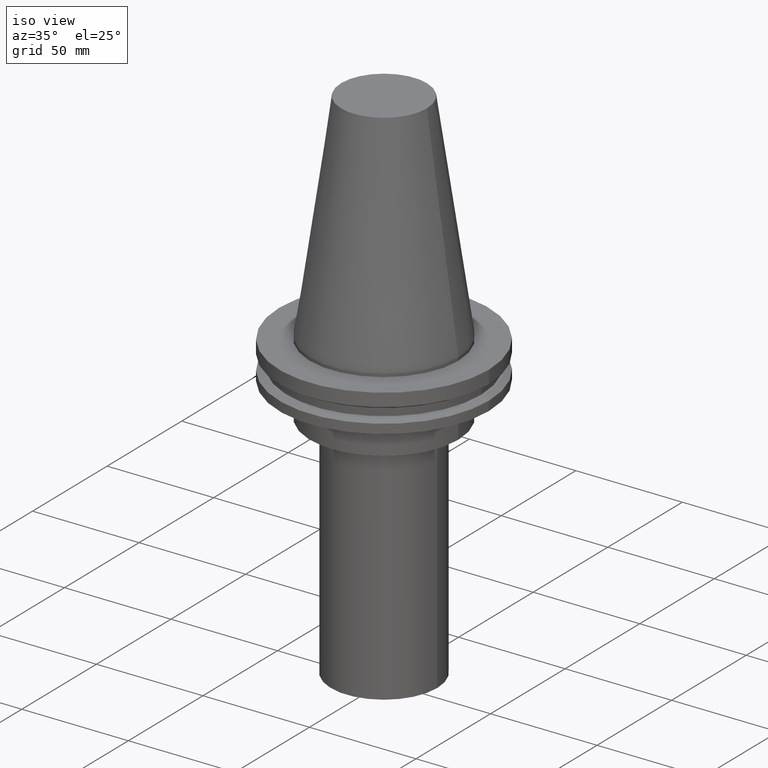
[diagram: clean part render]
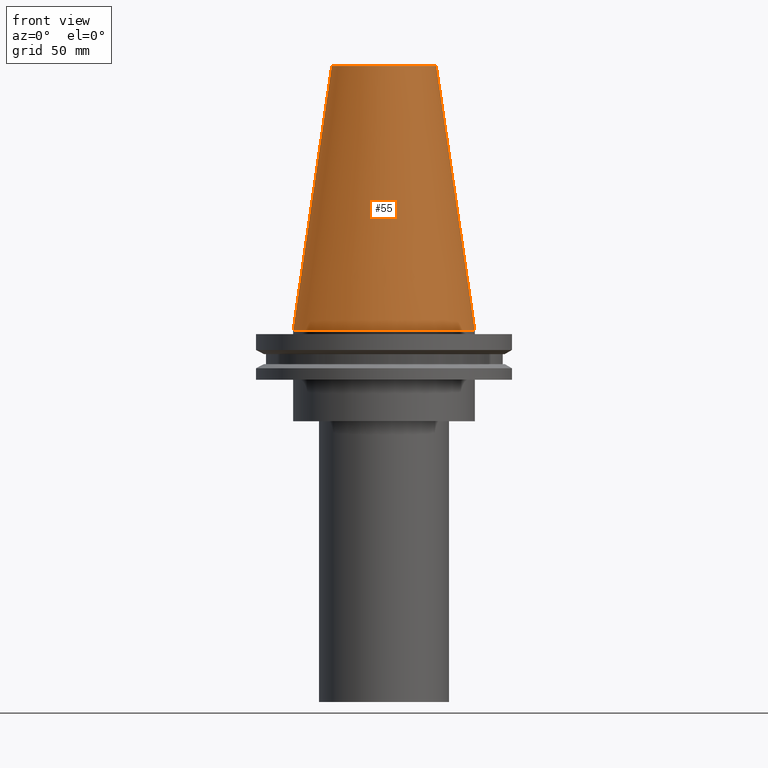
[diagram: tour spotlight — one face highlighted and labeled with its STEP entity id]
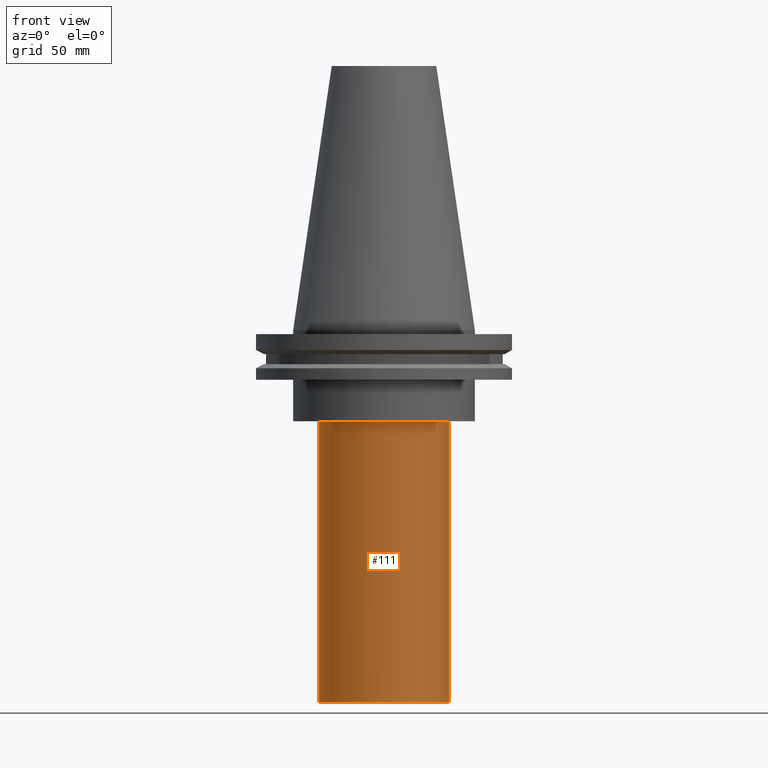
[diagram: tour spotlight — one face highlighted and labeled with its STEP entity id]
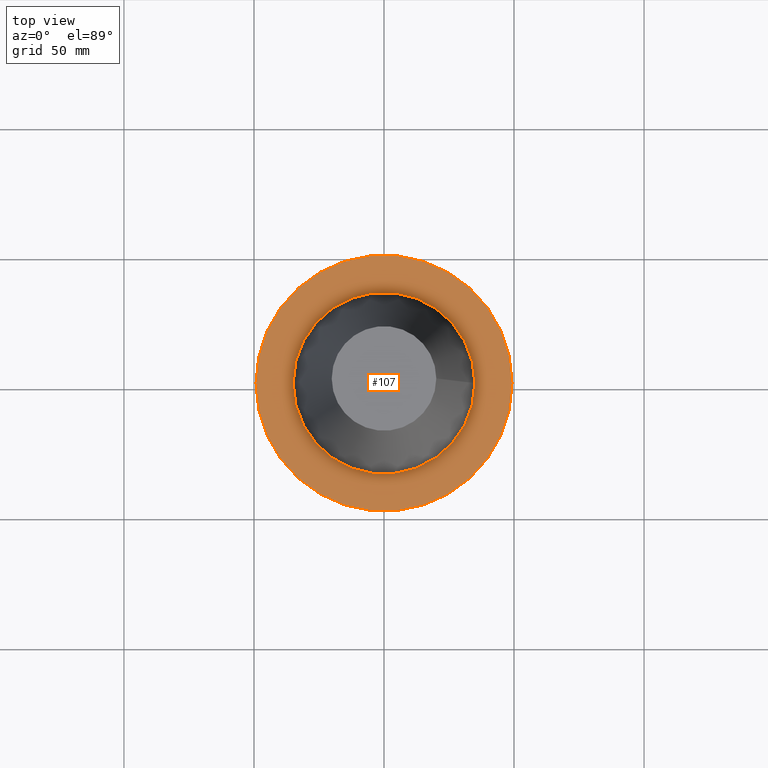
[diagram: tour spotlight — one face highlighted and labeled with its STEP entity id]
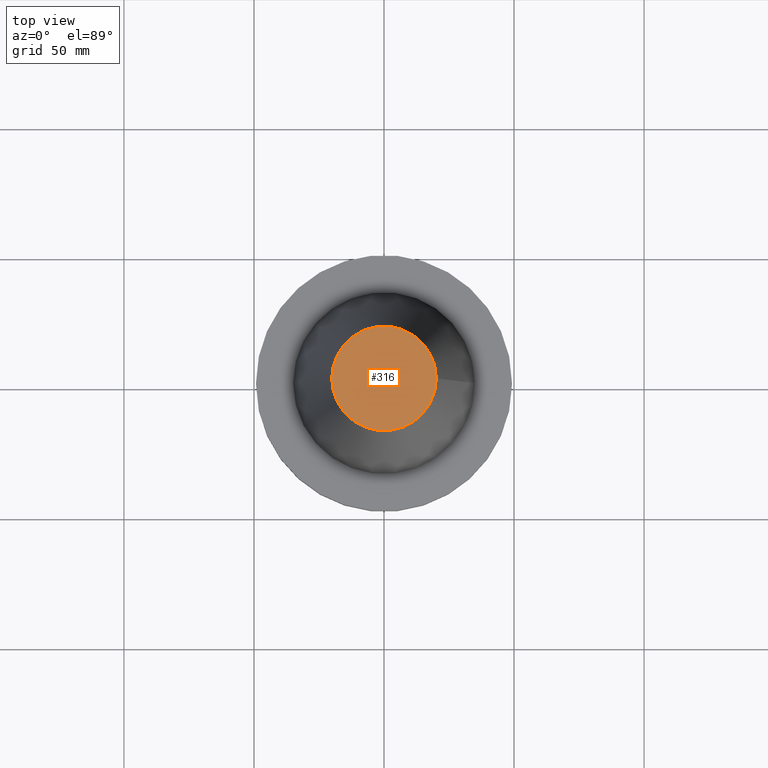
[diagram: tour spotlight — one face highlighted and labeled with its STEP entity id]
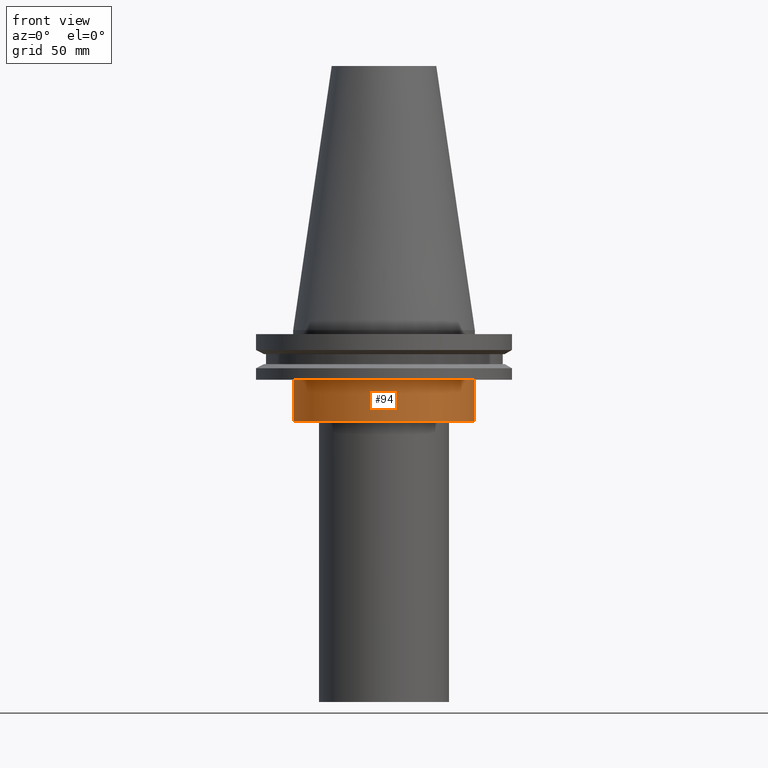
[diagram: tour spotlight — one face highlighted and labeled with its STEP entity id]
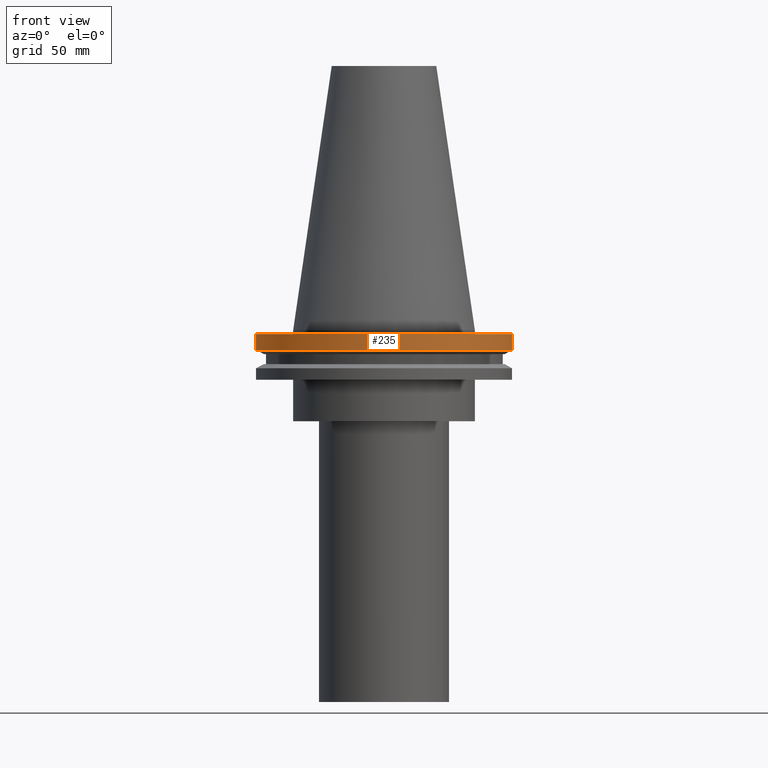
[diagram: tour spotlight — one face highlighted and labeled with its STEP entity id]
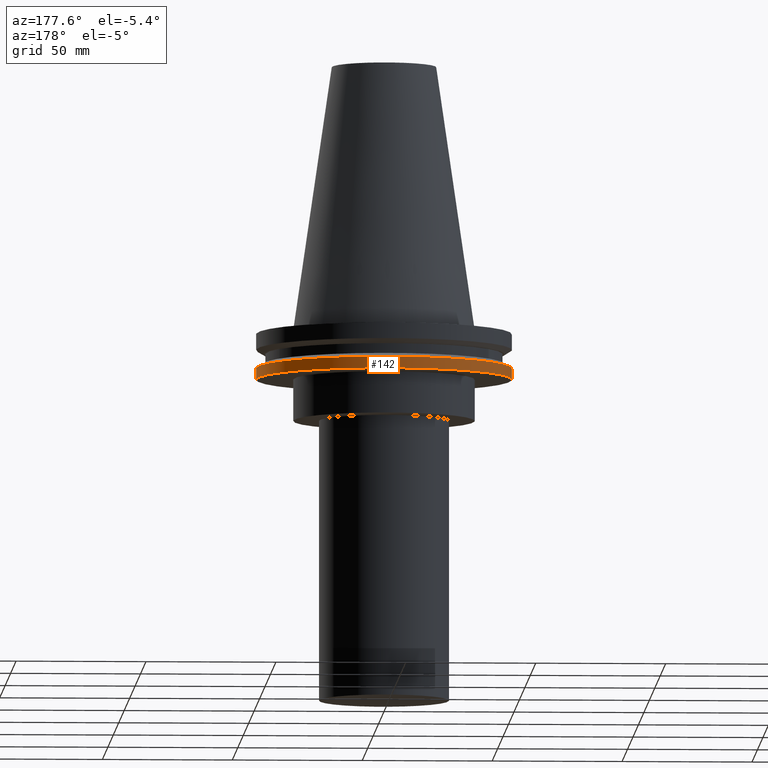
[diagram: tour spotlight — one face highlighted and labeled with its STEP entity id]
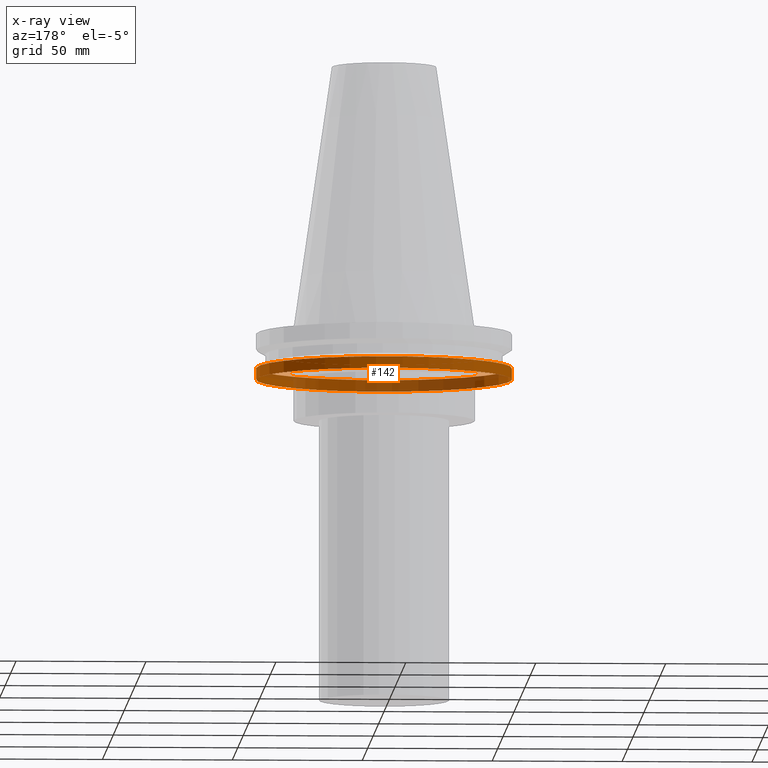
[diagram: x-ray of the same camera — body ghosted, this tour face saturated]
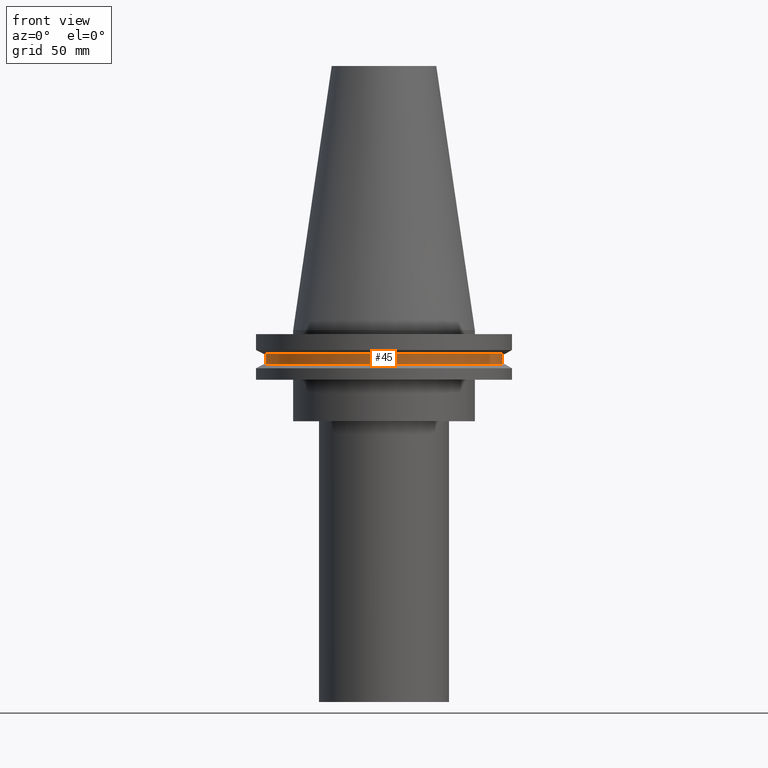
[diagram: tour spotlight — one face highlighted and labeled with its STEP entity id]
A machine part: a face-by-face anatomy tour. The part has 16 B-rep faces; the first image is the clean iso view, then the 8 largest visible faces are spotlighted one at a time (largest first), each with its STEP entity span.

Face 1 — front view, entity #55. In plain terms, the highlighted conical surface has half-angle 8.297 deg.
Definition (entity closure, byte-faithful):
#9 = CARTESIAN_POINT ( 'NONE',  ( 0.000000000000000000, 0.000000000000000000, 0.000000000000000000 ) ) ;
#55 = ADVANCED_FACE ( 'NONE', ( #373, #375 ), #280, .T. ) ;
#65 = CARTESIAN_POINT ( 'NONE',  ( 0.000000000000000000, 0.000000000000000000, 0.000000000000000000 ) ) ;
#81 = ORIENTED_EDGE ( 'NONE', *, *, #351, .F. ) ;
#89 = EDGE_LOOP ( 'NONE', ( #81 ) ) ;
#98 = DIRECTION ( 'NONE',  ( 0.000000000000000000, 0.000000000000000000, -1.000000000000000000 ) ) ;
#124 = DIRECTION ( 'NONE',  ( 1.000000000000000000, 0.000000000000000000, 0.000000000000000000 ) ) ;
#129 = CIRCLE ( 'NONE', #208, 20.10819343178871321 ) ;
#130 = DIRECTION ( 'NONE',  ( 1.000000000000000000, 0.000000000000000000, 0.000000000000000000 ) ) ;
#164 = DIRECTION ( 'NONE',  ( -0.000000000000000000, -0.000000000000000000, 1.000000000000000000 ) ) ;
#204 = CARTESIAN_POINT ( 'NONE',  ( 34.92499999999999005, 0.000000000000000000, 0.000000000000000000 ) ) ;
#206 = CARTESIAN_POINT ( 'NONE',  ( 20.10819343178871321, 0.000000000000000000, 101.5999999999999801 ) ) ;
#208 = AXIS2_PLACEMENT_3D ( 'NONE', #369, #310, #124 ) ;
#210 = VERTEX_POINT ( 'NONE', #204 ) ;
#213 = DIRECTION ( 'NONE',  ( -1.000000000000000000, 0.000000000000000000, 0.000000000000000000 ) ) ;
#231 = ORIENTED_EDGE ( 'NONE', *, *, #358, .T. ) ;
#261 = EDGE_LOOP ( 'NONE', ( #231 ) ) ;
#271 = VERTEX_POINT ( 'NONE', #206 ) ;
#280 = CONICAL_SURFACE ( 'NONE', #301, 34.92499999999999005, 0.1448138465474119452 ) ;
#291 = AXIS2_PLACEMENT_3D ( 'NONE', #65, #164, #130 ) ;
#301 = AXIS2_PLACEMENT_3D ( 'NONE', #9, #98, #213 ) ;
#308 = CIRCLE ( 'NONE', #291, 34.92499999999999005 ) ;
#310 = DIRECTION ( 'NONE',  ( -0.000000000000000000, -0.000000000000000000, 1.000000000000000000 ) ) ;
#351 = EDGE_CURVE ( 'NONE', #271, #271, #129, .T. ) ;
#358 = EDGE_CURVE ( 'NONE', #210, #210, #308, .T. ) ;
#369 = CARTESIAN_POINT ( 'NONE',  ( 0.000000000000000000, 0.000000000000000000, 101.5999999999999801 ) ) ;
#373 = FACE_BOUND ( 'NONE', #89, .T. ) ;
#375 = FACE_OUTER_BOUND ( 'NONE', #261, .T. ) ;

Face 2 — front view, entity #111. In plain terms, the highlighted cylindrical surface (bore or boss wall) has radius 25 mm, axis along (-0, -0, 1).
Definition (entity closure, byte-faithful):
#26 = FACE_OUTER_BOUND ( 'NONE', #181, .T. ) ;
#28 = DIRECTION ( 'NONE',  ( 1.000000000000000000, 0.000000000000000000, 0.000000000000000000 ) ) ;
#78 = CIRCLE ( 'NONE', #352, 25.00000000000000000 ) ;
#84 = FACE_OUTER_BOUND ( 'NONE', #205, .T. ) ;
#92 = VERTEX_POINT ( 'NONE', #185 ) ;
#111 = ADVANCED_FACE ( 'NONE', ( #26, #84 ), #288, .T. ) ;
#116 = DIRECTION ( 'NONE',  ( 1.000000000000000000, 0.000000000000000000, 0.000000000000000000 ) ) ;
#121 = AXIS2_PLACEMENT_3D ( 'NONE', #387, #228, #116 ) ;
#127 = DIRECTION ( 'NONE',  ( -0.000000000000000000, -0.000000000000000000, 1.000000000000000000 ) ) ;
#160 = CARTESIAN_POINT ( 'NONE',  ( 25.00000000000000000, 0.000000000000000000, -35.00000000000000000 ) ) ;
#163 = VERTEX_POINT ( 'NONE', #160 ) ;
#181 = EDGE_LOOP ( 'NONE', ( #322 ) ) ;
#185 = CARTESIAN_POINT ( 'NONE',  ( 25.00000000000000000, 0.000000000000000000, -143.0000000000000000 ) ) ;
#205 = EDGE_LOOP ( 'NONE', ( #330 ) ) ;
#217 = AXIS2_PLACEMENT_3D ( 'NONE', #329, #127, #338 ) ;
#222 = CIRCLE ( 'NONE', #217, 25.00000000000000000 ) ;
#228 = DIRECTION ( 'NONE',  ( -0.000000000000000000, -0.000000000000000000, 1.000000000000000000 ) ) ;
#277 = EDGE_CURVE ( 'NONE', #92, #92, #78, .T. ) ;
#288 = CYLINDRICAL_SURFACE ( 'NONE', #121, 25.00000000000000000 ) ;
#293 = DIRECTION ( 'NONE',  ( -0.000000000000000000, -0.000000000000000000, 1.000000000000000000 ) ) ;
#319 = CARTESIAN_POINT ( 'NONE',  ( 0.000000000000000000, 0.000000000000000000, -143.0000000000000000 ) ) ;
#322 = ORIENTED_EDGE ( 'NONE', *, *, #326, .F. ) ;
#326 = EDGE_CURVE ( 'NONE', #163, #163, #222, .T. ) ;
#329 = CARTESIAN_POINT ( 'NONE',  ( 0.000000000000000000, 0.000000000000000000, -35.00000000000000000 ) ) ;
#330 = ORIENTED_EDGE ( 'NONE', *, *, #277, .T. ) ;
#338 = DIRECTION ( 'NONE',  ( 1.000000000000000000, 0.000000000000000000, 0.000000000000000000 ) ) ;
#352 = AXIS2_PLACEMENT_3D ( 'NONE', #319, #293, #28 ) ;
#387 = CARTESIAN_POINT ( 'NONE',  ( 0.000000000000000000, 0.000000000000000000, 0.000000000000000000 ) ) ;

Face 3 — top view, entity #107. In plain terms, the highlighted planar face has unit normal (0, 0, -1).
Definition (entity closure, byte-faithful):
#37 = FACE_BOUND ( 'NONE', #382, .T. ) ;
#48 = DIRECTION ( 'NONE',  ( -1.000000000000000000, 0.000000000000000000, -0.000000000000000000 ) ) ;
#56 = FACE_OUTER_BOUND ( 'NONE', #178, .T. ) ;
#67 = CARTESIAN_POINT ( 'NONE',  ( 34.92499999999999005, 0.000000000000000000, -1.499999999999987566 ) ) ;
#97 = VERTEX_POINT ( 'NONE', #274 ) ;
#107 = ADVANCED_FACE ( 'NONE', ( #37, #56 ), #384, .F. ) ;
#117 = ORIENTED_EDGE ( 'NONE', *, *, #214, .F. ) ;
#139 = CIRCLE ( 'NONE', #314, 49.21499999999999631 ) ;
#154 = ORIENTED_EDGE ( 'NONE', *, *, #346, .T. ) ;
#178 = EDGE_LOOP ( 'NONE', ( #154 ) ) ;
#195 = AXIS2_PLACEMENT_3D ( 'NONE', #327, #225, #258 ) ;
#214 = EDGE_CURVE ( 'NONE', #336, #336, #380, .T. ) ;
#225 = DIRECTION ( 'NONE',  ( -0.000000000000000000, -0.000000000000000000, 1.000000000000000000 ) ) ;
#246 = CARTESIAN_POINT ( 'NONE',  ( 0.000000000000000000, 0.000000000000000000, -1.499999999999987566 ) ) ;
#258 = DIRECTION ( 'NONE',  ( 1.000000000000000000, 0.000000000000000000, 0.000000000000000000 ) ) ;
#274 = CARTESIAN_POINT ( 'NONE',  ( 49.21499999999999631, 0.000000000000000000, -1.499999999999987566 ) ) ;
#295 = CARTESIAN_POINT ( 'NONE',  ( 0.000000000000000000, 49.21499999999999631, -1.499999999999992895 ) ) ;
#297 = DIRECTION ( 'NONE',  ( 1.000000000000000000, 0.000000000000000000, 0.000000000000000000 ) ) ;
#314 = AXIS2_PLACEMENT_3D ( 'NONE', #246, #332, #297 ) ;
#327 = CARTESIAN_POINT ( 'NONE',  ( 0.000000000000000000, 0.000000000000000000, -1.499999999999987566 ) ) ;
#332 = DIRECTION ( 'NONE',  ( -0.000000000000000000, -0.000000000000000000, 1.000000000000000000 ) ) ;
#336 = VERTEX_POINT ( 'NONE', #67 ) ;
#346 = EDGE_CURVE ( 'NONE', #97, #97, #139, .T. ) ;
#348 = AXIS2_PLACEMENT_3D ( 'NONE', #295, #357, #48 ) ;
#357 = DIRECTION ( 'NONE',  ( 0.000000000000000000, 0.000000000000000000, -1.000000000000000000 ) ) ;
#380 = CIRCLE ( 'NONE', #195, 34.92499999999999005 ) ;
#382 = EDGE_LOOP ( 'NONE', ( #117 ) ) ;
#384 = PLANE ( 'NONE',  #348 ) ;

Face 4 — top view, entity #316. In plain terms, the highlighted planar face has unit normal (0, 0, -1).
Definition (entity closure, byte-faithful):
#2 = PLANE ( 'NONE',  #250 ) ;
#90 = CARTESIAN_POINT ( 'NONE',  ( 0.000000000000000000, 20.10819343178871321, 101.5999999999999943 ) ) ;
#124 = DIRECTION ( 'NONE',  ( 1.000000000000000000, 0.000000000000000000, 0.000000000000000000 ) ) ;
#129 = CIRCLE ( 'NONE', #208, 20.10819343178871321 ) ;
#188 = DIRECTION ( 'NONE',  ( 0.000000000000000000, 0.000000000000000000, -1.000000000000000000 ) ) ;
#206 = CARTESIAN_POINT ( 'NONE',  ( 20.10819343178871321, 0.000000000000000000, 101.5999999999999801 ) ) ;
#208 = AXIS2_PLACEMENT_3D ( 'NONE', #369, #310, #124 ) ;
#237 = EDGE_LOOP ( 'NONE', ( #263 ) ) ;
#240 = FACE_OUTER_BOUND ( 'NONE', #237, .T. ) ;
#250 = AXIS2_PLACEMENT_3D ( 'NONE', #90, #188, #269 ) ;
#263 = ORIENTED_EDGE ( 'NONE', *, *, #351, .T. ) ;
#269 = DIRECTION ( 'NONE',  ( -1.000000000000000000, 0.000000000000000000, -0.000000000000000000 ) ) ;
#271 = VERTEX_POINT ( 'NONE', #206 ) ;
#310 = DIRECTION ( 'NONE',  ( -0.000000000000000000, -0.000000000000000000, 1.000000000000000000 ) ) ;
#316 = ADVANCED_FACE ( 'NONE', ( #240 ), #2, .F. ) ;
#351 = EDGE_CURVE ( 'NONE', #271, #271, #129, .T. ) ;
#369 = CARTESIAN_POINT ( 'NONE',  ( 0.000000000000000000, 0.000000000000000000, 101.5999999999999801 ) ) ;

Face 5 — front view, entity #94. In plain terms, the highlighted cylindrical surface (bore or boss wall) has radius 34.925 mm, axis along (-0, -0, 1).
Definition (entity closure, byte-faithful):
#12 = CARTESIAN_POINT ( 'NONE',  ( 0.000000000000000000, 0.000000000000000000, 101.5999999999999943 ) ) ;
#14 = CIRCLE ( 'NONE', #333, 34.92499999999999716 ) ;
#27 = EDGE_LOOP ( 'NONE', ( #385 ) ) ;
#40 = DIRECTION ( 'NONE',  ( -0.000000000000000000, -0.000000000000000000, 1.000000000000000000 ) ) ;
#60 = CARTESIAN_POINT ( 'NONE',  ( 34.92499999999999716, 0.000000000000000000, -35.00000000000000000 ) ) ;
#62 = DIRECTION ( 'NONE',  ( 1.000000000000000000, 0.000000000000000000, 0.000000000000000000 ) ) ;
#63 = VERTEX_POINT ( 'NONE', #60 ) ;
#68 = FACE_OUTER_BOUND ( 'NONE', #203, .T. ) ;
#74 = AXIS2_PLACEMENT_3D ( 'NONE', #12, #133, #62 ) ;
#76 = EDGE_CURVE ( 'NONE', #63, #63, #335, .T. ) ;
#93 = FACE_OUTER_BOUND ( 'NONE', #27, .T. ) ;
#94 = ADVANCED_FACE ( 'NONE', ( #68, #93 ), #189, .T. ) ;
#95 = VERTEX_POINT ( 'NONE', #248 ) ;
#133 = DIRECTION ( 'NONE',  ( -0.000000000000000000, -0.000000000000000000, 1.000000000000000000 ) ) ;
#143 = DIRECTION ( 'NONE',  ( 1.000000000000000000, 0.000000000000000000, 0.000000000000000000 ) ) ;
#151 = CARTESIAN_POINT ( 'NONE',  ( 0.000000000000000000, 0.000000000000000000, -19.04999999999999716 ) ) ;
#152 = ORIENTED_EDGE ( 'NONE', *, *, #283, .F. ) ;
#166 = AXIS2_PLACEMENT_3D ( 'NONE', #307, #40, #278 ) ;
#189 = CYLINDRICAL_SURFACE ( 'NONE', #74, 34.92499999999999716 ) ;
#203 = EDGE_LOOP ( 'NONE', ( #152 ) ) ;
#248 = CARTESIAN_POINT ( 'NONE',  ( 34.92499999999999716, 0.000000000000000000, -19.04999999999999716 ) ) ;
#262 = DIRECTION ( 'NONE',  ( -0.000000000000000000, -0.000000000000000000, 1.000000000000000000 ) ) ;
#278 = DIRECTION ( 'NONE',  ( 1.000000000000000000, 0.000000000000000000, 0.000000000000000000 ) ) ;
#283 = EDGE_CURVE ( 'NONE', #95, #95, #14, .T. ) ;
#307 = CARTESIAN_POINT ( 'NONE',  ( 0.000000000000000000, 0.000000000000000000, -35.00000000000000000 ) ) ;
#333 = AXIS2_PLACEMENT_3D ( 'NONE', #151, #262, #143 ) ;
#335 = CIRCLE ( 'NONE', #166, 34.92499999999999716 ) ;
#385 = ORIENTED_EDGE ( 'NONE', *, *, #76, .T. ) ;

Face 6 — front view, entity #235. In plain terms, the highlighted cylindrical surface (bore or boss wall) has radius 49.215 mm, axis along (-0, -0, 1).
Definition (entity closure, byte-faithful):
#8 = CARTESIAN_POINT ( 'NONE',  ( 0.000000000000000000, 0.000000000000000000, -7.602389855251287187 ) ) ;
#52 = ORIENTED_EDGE ( 'NONE', *, *, #309, .T. ) ;
#83 = EDGE_LOOP ( 'NONE', ( #292 ) ) ;
#97 = VERTEX_POINT ( 'NONE', #274 ) ;
#112 = CYLINDRICAL_SURFACE ( 'NONE', #298, 49.21499999999999631 ) ;
#132 = CARTESIAN_POINT ( 'NONE',  ( 49.21500000000000341, 0.000000000000000000, -7.602389855251287187 ) ) ;
#139 = CIRCLE ( 'NONE', #314, 49.21499999999999631 ) ;
#148 = DIRECTION ( 'NONE',  ( 1.000000000000000000, 0.000000000000000000, 0.000000000000000000 ) ) ;
#158 = VERTEX_POINT ( 'NONE', #132 ) ;
#196 = DIRECTION ( 'NONE',  ( -0.000000000000000000, -0.000000000000000000, 1.000000000000000000 ) ) ;
#197 = EDGE_LOOP ( 'NONE', ( #52 ) ) ;
#198 = FACE_OUTER_BOUND ( 'NONE', #83, .T. ) ;
#224 = CIRCLE ( 'NONE', #383, 49.21500000000000341 ) ;
#235 = ADVANCED_FACE ( 'NONE', ( #198, #236 ), #112, .T. ) ;
#236 = FACE_OUTER_BOUND ( 'NONE', #197, .T. ) ;
#238 = DIRECTION ( 'NONE',  ( -0.000000000000000000, -0.000000000000000000, 1.000000000000000000 ) ) ;
#246 = CARTESIAN_POINT ( 'NONE',  ( 0.000000000000000000, 0.000000000000000000, -1.499999999999987566 ) ) ;
#274 = CARTESIAN_POINT ( 'NONE',  ( 49.21499999999999631, 0.000000000000000000, -1.499999999999987566 ) ) ;
#292 = ORIENTED_EDGE ( 'NONE', *, *, #346, .F. ) ;
#297 = DIRECTION ( 'NONE',  ( 1.000000000000000000, 0.000000000000000000, 0.000000000000000000 ) ) ;
#298 = AXIS2_PLACEMENT_3D ( 'NONE', #364, #196, #148 ) ;
#309 = EDGE_CURVE ( 'NONE', #158, #158, #224, .T. ) ;
#314 = AXIS2_PLACEMENT_3D ( 'NONE', #246, #332, #297 ) ;
#332 = DIRECTION ( 'NONE',  ( -0.000000000000000000, -0.000000000000000000, 1.000000000000000000 ) ) ;
#346 = EDGE_CURVE ( 'NONE', #97, #97, #139, .T. ) ;
#364 = CARTESIAN_POINT ( 'NONE',  ( 0.000000000000000000, 0.000000000000000000, 101.5999999999999943 ) ) ;
#372 = DIRECTION ( 'NONE',  ( 1.000000000000000000, 0.000000000000000000, 0.000000000000000000 ) ) ;
#383 = AXIS2_PLACEMENT_3D ( 'NONE', #8, #238, #372 ) ;

Face 7 — auxiliary view, entity #142. An x-ray twin of the same camera follows (body ghosted, this face saturated) — the face is partly hidden behind the body. In plain terms, the highlighted cylindrical surface (bore or boss wall) has radius 49.215 mm, axis along (-0, -0, 1).
Definition (entity closure, byte-faithful):
#4 = CIRCLE ( 'NONE', #86, 49.21499999999998920 ) ;
#7 = EDGE_CURVE ( 'NONE', #302, #302, #285, .T. ) ;
#10 = CARTESIAN_POINT ( 'NONE',  ( 49.21499999999998920, 0.000000000000000000, -14.65761014474876944 ) ) ;
#36 = VERTEX_POINT ( 'NONE', #366 ) ;
#86 = AXIS2_PLACEMENT_3D ( 'NONE', #254, #232, #173 ) ;
#113 = EDGE_LOOP ( 'NONE', ( #365 ) ) ;
#136 = EDGE_CURVE ( 'NONE', #36, #36, #4, .T. ) ;
#138 = AXIS2_PLACEMENT_3D ( 'NONE', #389, #355, #264 ) ;
#142 = ADVANCED_FACE ( 'NONE', ( #230, #201 ), #153, .T. ) ;
#153 = CYLINDRICAL_SURFACE ( 'NONE', #138, 49.21499999999998920 ) ;
#173 = DIRECTION ( 'NONE',  ( 1.000000000000000000, 0.000000000000000000, 0.000000000000000000 ) ) ;
#186 = DIRECTION ( 'NONE',  ( 1.000000000000000000, 0.000000000000000000, 0.000000000000000000 ) ) ;
#200 = ORIENTED_EDGE ( 'NONE', *, *, #7, .F. ) ;
#201 = FACE_OUTER_BOUND ( 'NONE', #113, .T. ) ;
#202 = CARTESIAN_POINT ( 'NONE',  ( 0.000000000000000000, 0.000000000000000000, -14.65761014474876944 ) ) ;
#230 = FACE_OUTER_BOUND ( 'NONE', #390, .T. ) ;
#232 = DIRECTION ( 'NONE',  ( -0.000000000000000000, -0.000000000000000000, 1.000000000000000000 ) ) ;
#254 = CARTESIAN_POINT ( 'NONE',  ( 0.000000000000000000, 0.000000000000000000, -19.04999999999999716 ) ) ;
#264 = DIRECTION ( 'NONE',  ( 1.000000000000000000, 0.000000000000000000, 0.000000000000000000 ) ) ;
#270 = DIRECTION ( 'NONE',  ( -0.000000000000000000, -0.000000000000000000, 1.000000000000000000 ) ) ;
#285 = CIRCLE ( 'NONE', #315, 49.21499999999998920 ) ;
#302 = VERTEX_POINT ( 'NONE', #10 ) ;
#315 = AXIS2_PLACEMENT_3D ( 'NONE', #202, #270, #186 ) ;
#355 = DIRECTION ( 'NONE',  ( -0.000000000000000000, -0.000000000000000000, 1.000000000000000000 ) ) ;
#365 = ORIENTED_EDGE ( 'NONE', *, *, #136, .T. ) ;
#366 = CARTESIAN_POINT ( 'NONE',  ( 49.21499999999998920, 0.000000000000000000, -19.04999999999999716 ) ) ;
#389 = CARTESIAN_POINT ( 'NONE',  ( 0.000000000000000000, 0.000000000000000000, 101.5999999999999943 ) ) ;
#390 = EDGE_LOOP ( 'NONE', ( #200 ) ) ;

Face 8 — front view, entity #45. In plain terms, the highlighted cylindrical surface (bore or boss wall) has radius 45.645 mm, axis along (-0, -0, 1).
Definition (entity closure, byte-faithful):
#29 = EDGE_LOOP ( 'NONE', ( #146 ) ) ;
#38 = DIRECTION ( 'NONE',  ( -0.000000000000000000, -0.000000000000000000, 1.000000000000000000 ) ) ;
#41 = VERTEX_POINT ( 'NONE', #276 ) ;
#45 = ADVANCED_FACE ( 'NONE', ( #66, #305 ), #341, .T. ) ;
#50 = EDGE_LOOP ( 'NONE', ( #179 ) ) ;
#61 = AXIS2_PLACEMENT_3D ( 'NONE', #339, #275, #311 ) ;
#66 = FACE_OUTER_BOUND ( 'NONE', #29, .T. ) ;
#69 = EDGE_CURVE ( 'NONE', #41, #41, #227, .T. ) ;
#85 = CIRCLE ( 'NONE', #102, 45.64500000000000313 ) ;
#88 = CARTESIAN_POINT ( 'NONE',  ( 0.000000000000000000, 0.000000000000000000, -13.05499999999999794 ) ) ;
#102 = AXIS2_PLACEMENT_3D ( 'NONE', #88, #353, #177 ) ;
#146 = ORIENTED_EDGE ( 'NONE', *, *, #69, .F. ) ;
#177 = DIRECTION ( 'NONE',  ( 1.000000000000000000, 0.000000000000000000, 0.000000000000000000 ) ) ;
#179 = ORIENTED_EDGE ( 'NONE', *, *, #187, .T. ) ;
#187 = EDGE_CURVE ( 'NONE', #306, #306, #85, .T. ) ;
#227 = CIRCLE ( 'NONE', #61, 45.64500000000000313 ) ;
#243 = AXIS2_PLACEMENT_3D ( 'NONE', #249, #38, #367 ) ;
#249 = CARTESIAN_POINT ( 'NONE',  ( 0.000000000000000000, 0.000000000000000000, 101.5999999999999943 ) ) ;
#275 = DIRECTION ( 'NONE',  ( -0.000000000000000000, -0.000000000000000000, 1.000000000000000000 ) ) ;
#276 = CARTESIAN_POINT ( 'NONE',  ( 45.64500000000000313, 0.000000000000000000, -9.204999999999991189 ) ) ;
#305 = FACE_OUTER_BOUND ( 'NONE', #50, .T. ) ;
#306 = VERTEX_POINT ( 'NONE', #340 ) ;
#311 = DIRECTION ( 'NONE',  ( 1.000000000000000000, 0.000000000000000000, 0.000000000000000000 ) ) ;
#339 = CARTESIAN_POINT ( 'NONE',  ( 0.000000000000000000, 0.000000000000000000, -9.204999999999991189 ) ) ;
#340 = CARTESIAN_POINT ( 'NONE',  ( 45.64500000000000313, 0.000000000000000000, -13.05499999999999794 ) ) ;
#341 = CYLINDRICAL_SURFACE ( 'NONE', #243, 45.64500000000000313 ) ;
#353 = DIRECTION ( 'NONE',  ( -0.000000000000000000, -0.000000000000000000, 1.000000000000000000 ) ) ;
#367 = DIRECTION ( 'NONE',  ( 1.000000000000000000, 0.000000000000000000, 0.000000000000000000 ) ) ;